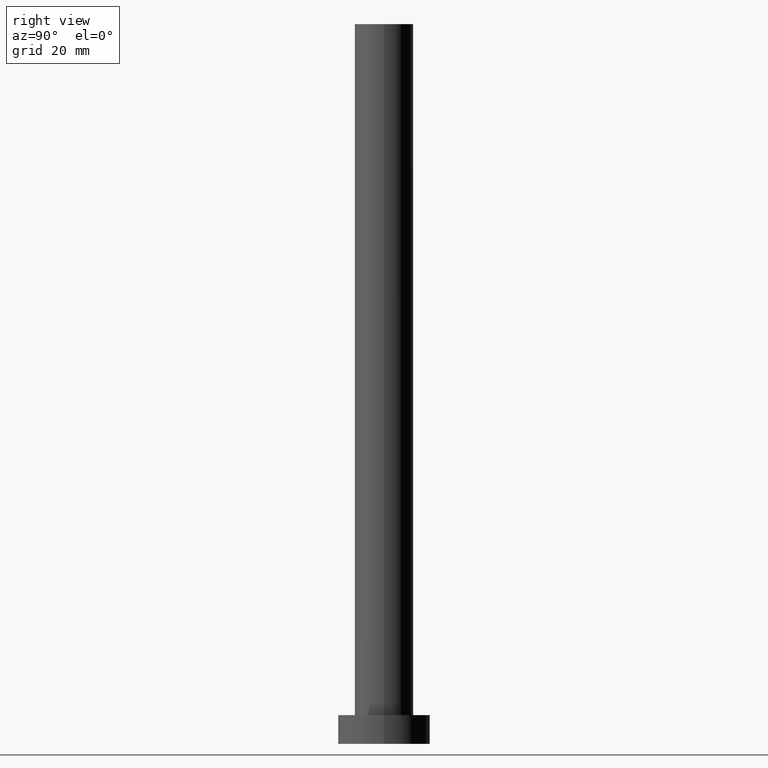
[diagram: clean part render]
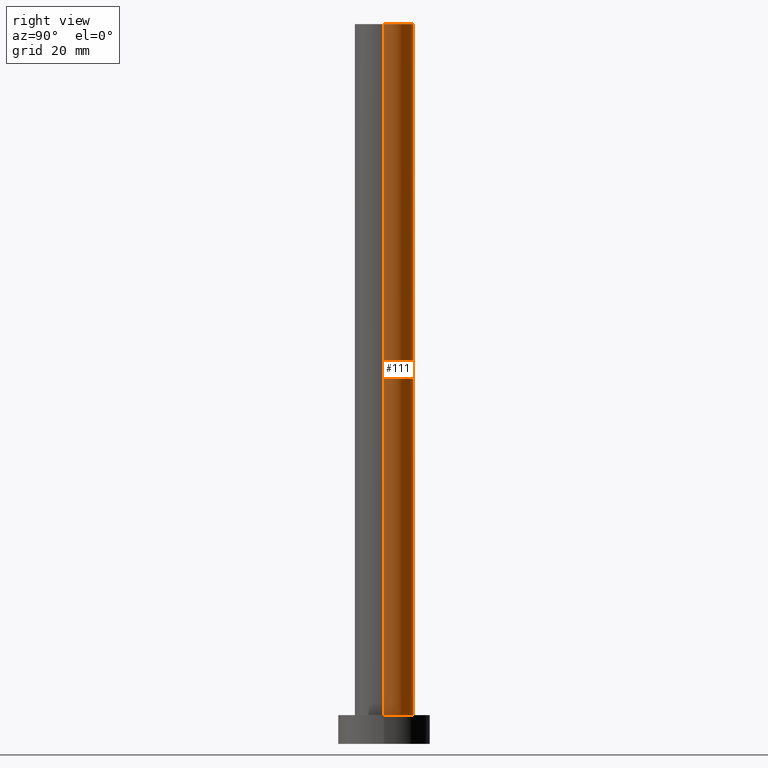
[diagram: same view with one face highlighted and labeled with its STEP entity id]
A machine part, right view. The second image highlights one B-rep face of the part: STEP entity #111.
In plain terms, the highlighted cylindrical surface (edge-blend (fillet) strip) has radius 5.1 mm, axis along (-0, -0, -1).
Its self-contained STEP definition (entity closure, byte-faithful):
#3 = CARTESIAN_POINT ( 'NONE',  ( 5.099999999999999645, 6.245698675651500839E-16, 125.0000000000000000 ) ) ;
#4 = AXIS2_PLACEMENT_3D ( 'NONE', #135, #86, #87 ) ;
#13 = CARTESIAN_POINT ( 'NONE',  ( 0.000000000000000000, 0.000000000000000000, 125.0000000000000000 ) ) ;
#19 = CARTESIAN_POINT ( 'NONE',  ( 5.099999999999999645, 6.245698675651500839E-16, 125.0000000000000000 ) ) ;
#26 = EDGE_CURVE ( 'NONE', #212, #83, #239, .T. ) ;
#33 = AXIS2_PLACEMENT_3D ( 'NONE', #13, #53, #251 ) ;
#41 = DIRECTION ( 'NONE',  ( -0.000000000000000000, -0.000000000000000000, -1.000000000000000000 ) ) ;
#48 = ORIENTED_EDGE ( 'NONE', *, *, #195, .T. ) ;
#50 = ORIENTED_EDGE ( 'NONE', *, *, #172, .F. ) ;
#51 = VECTOR ( 'NONE', #41, 1000.000000000000000 ) ;
#52 = VERTEX_POINT ( 'NONE', #174 ) ;
#53 = DIRECTION ( 'NONE',  ( -0.000000000000000000, -0.000000000000000000, -1.000000000000000000 ) ) ;
#58 = LINE ( 'NONE', #19, #209 ) ;
#83 = VERTEX_POINT ( 'NONE', #216 ) ;
#84 = ORIENTED_EDGE ( 'NONE', *, *, #26, .F. ) ;
#86 = DIRECTION ( 'NONE',  ( 0.000000000000000000, 0.000000000000000000, 1.000000000000000000 ) ) ;
#87 = DIRECTION ( 'NONE',  ( 1.000000000000000000, 0.000000000000000000, 0.000000000000000000 ) ) ;
#91 = EDGE_CURVE ( 'NONE', #52, #131, #112, .T. ) ;
#94 = DIRECTION ( 'NONE',  ( -0.000000000000000000, -0.000000000000000000, -1.000000000000000000 ) ) ;
#110 = FACE_OUTER_BOUND ( 'NONE', #247, .T. ) ;
#111 = ADVANCED_FACE ( 'NONE', ( #110 ), #196, .T. ) ;
#112 = CIRCLE ( 'NONE', #129, 5.099999999999999645 ) ;
#124 = CARTESIAN_POINT ( 'NONE',  ( -5.099999999999999645, 0.000000000000000000, 125.0000000000000000 ) ) ;
#129 = AXIS2_PLACEMENT_3D ( 'NONE', #171, #157, #233 ) ;
#131 = VERTEX_POINT ( 'NONE', #203 ) ;
#135 = CARTESIAN_POINT ( 'NONE',  ( 0.000000000000000000, 0.000000000000000000, 125.0000000000000000 ) ) ;
#144 = LINE ( 'NONE', #124, #51 ) ;
#157 = DIRECTION ( 'NONE',  ( 0.000000000000000000, 0.000000000000000000, 1.000000000000000000 ) ) ;
#171 = CARTESIAN_POINT ( 'NONE',  ( 0.000000000000000000, 0.000000000000000000, 5.000000000000000000 ) ) ;
#172 = EDGE_CURVE ( 'NONE', #83, #131, #144, .T. ) ;
#174 = CARTESIAN_POINT ( 'NONE',  ( 5.099999999999999645, 6.245698675651500839E-16, 5.000000000000000000 ) ) ;
#195 = EDGE_CURVE ( 'NONE', #212, #52, #58, .T. ) ;
#196 = CYLINDRICAL_SURFACE ( 'NONE', #33, 5.099999999999999645 ) ;
#203 = CARTESIAN_POINT ( 'NONE',  ( -5.099999999999999645, 0.000000000000000000, 5.000000000000000000 ) ) ;
#209 = VECTOR ( 'NONE', #94, 1000.000000000000000 ) ;
#212 = VERTEX_POINT ( 'NONE', #3 ) ;
#216 = CARTESIAN_POINT ( 'NONE',  ( -5.099999999999999645, 0.000000000000000000, 125.0000000000000000 ) ) ;
#233 = DIRECTION ( 'NONE',  ( 1.000000000000000000, 0.000000000000000000, 0.000000000000000000 ) ) ;
#239 = CIRCLE ( 'NONE', #4, 5.099999999999999645 ) ;
#247 = EDGE_LOOP ( 'NONE', ( #84, #48, #255, #50 ) ) ;
#251 = DIRECTION ( 'NONE',  ( -1.000000000000000000, 0.000000000000000000, 0.000000000000000000 ) ) ;
#255 = ORIENTED_EDGE ( 'NONE', *, *, #91, .T. ) ;